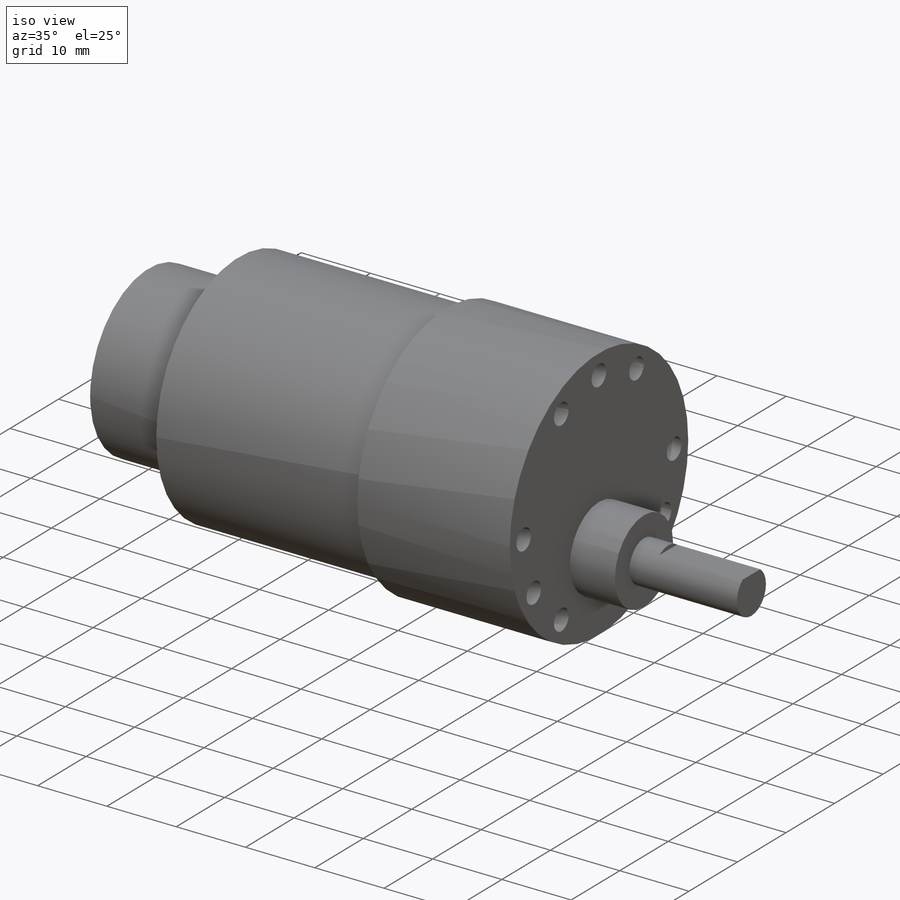
[diagram: iso view]
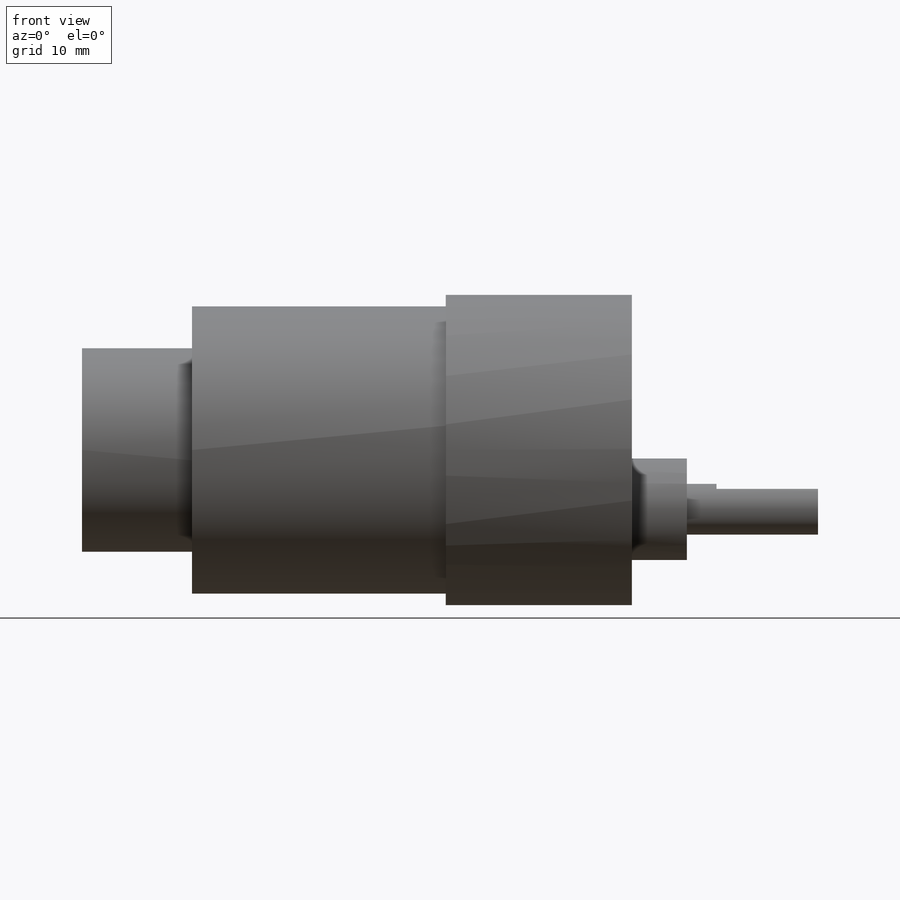
[diagram: front view]
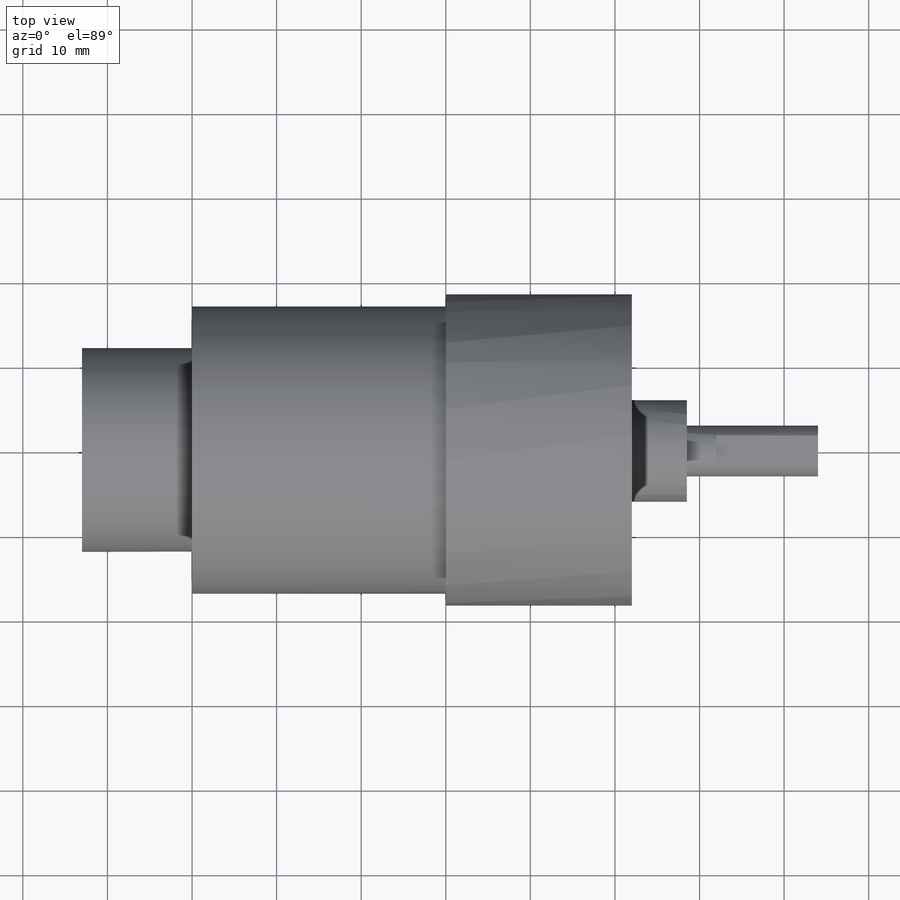
[diagram: top view]
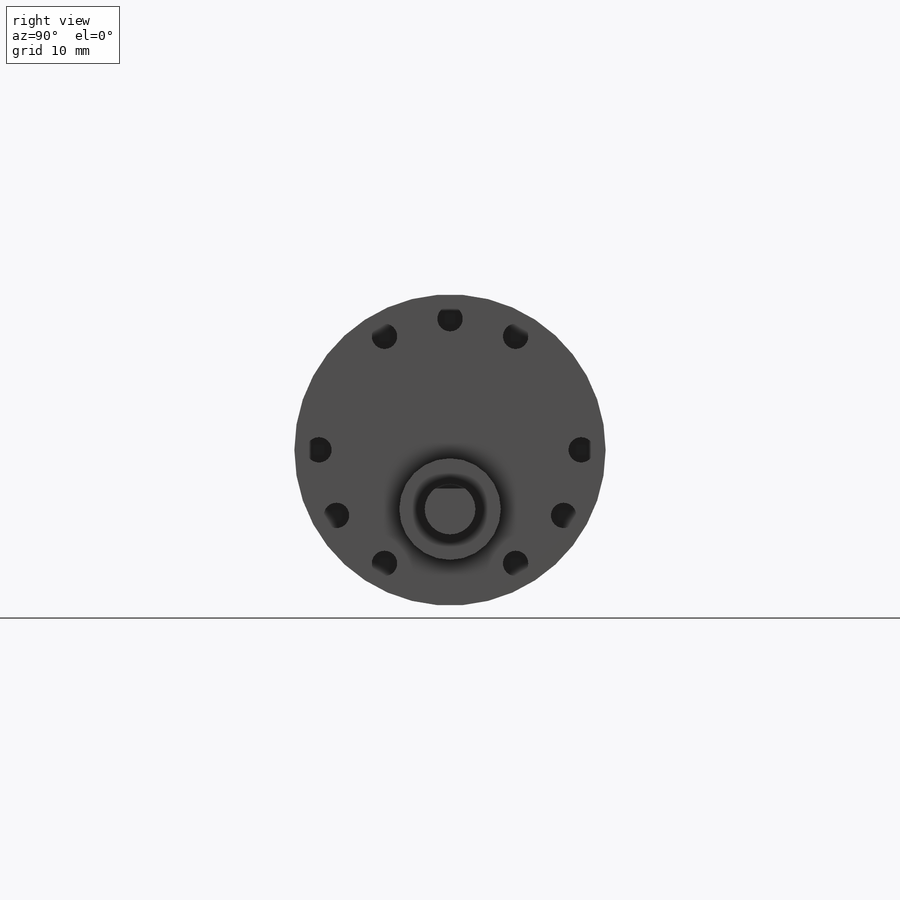
[diagram: right view]
SOLIDWORKS PART (.sldprt)
format: sldprt  version: not decoded by parser v0  size: 240,640 bytes
history: native  units: mm
features: sketch x5, plane x3, revolve x2, cut_extrude x2, material x1, extrude x1, pattern_circular x1 (+10 scaffold rows collapsed)
feature tree (25):
  scaffold x10  (default folders/planes/origin — collapsed)
  material  "Matériau <non spécifié>"
  plane  "Plan de face"
  plane  "Plan de dessus"
  plane  "Plan de droite"
  sketch  "Esquisse1"  dims[c1.D1=17.0mm c1.D2=18.4mm c1.D3=30.0mm c1.D4=22.0mm c1.D5=4.5mm c1.D6=~8.913151mm c2.D5=~8.111458mm]
  revolve  "Révolution1"  Angle=360deg
  sketch  "Esquisse3"  dims[c1.D1=11.56mm c1.D2=6.5mm c1.D3=15.5mm c1.D4=6.0mm c1.D5=3.0mm c2.D1=0.0mm c2.D6=7.0mm]
  revolve  "Révolution2"  Angle=360deg
  sketch  "Esquisse4"  dims[D1=2.4mm D2=3.5mm]
  cut_extrude  "Enlèv. mat.-Extru.1"  Depth=10mm
  sketch  "Esquisse5"  dims[D1=24.1mm D2=23.8mm]
  extrude  "Boss.-Extru.1"  Depth=13mm
  sketch  "Esquisse6"  dims[c1.D1=3.0mm c1.D5=3.0mm c1.D6=3.0mm c1.D2=15.5mm c1.D3=15.5mm c2.D3=30.0deg c2.D4=15.5mm c3.D4=30.0deg]
  cut_extrude  "Enlèv. mat.-Extru.2"  Depth=5mm
  pattern_circular  "Répétition circulaire1"  Count=3 Angle=360deg
decode coverage: 11 of 11 modeling features carry decoded parameters
note: ~ marks probable driven/reference dimensions
note: suppression state not decoded; provenance and decode notes live in map.json
